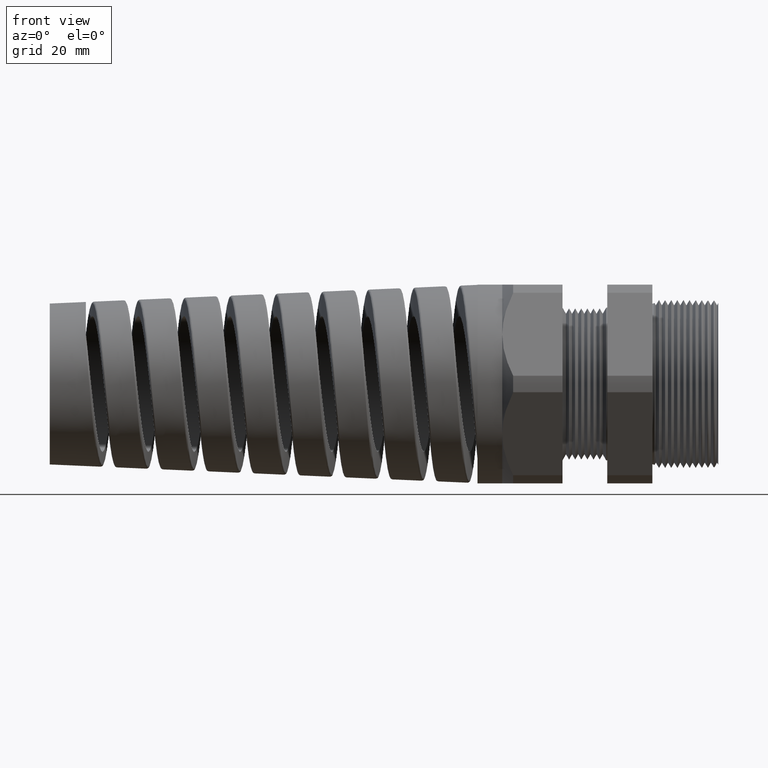
[diagram: clean part render]
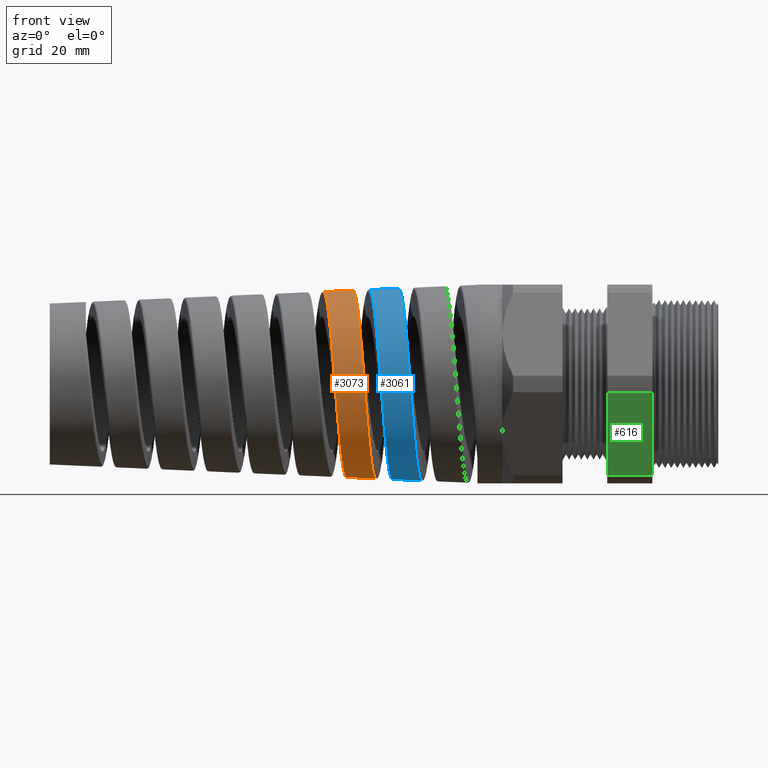
[diagram: same view with three faces highlighted in distinct colors, each labeled with its STEP entity id]
A machine part, front view with three faces highlighted in distinct colors.
Their STEP definitions:

[orange] entity #3073 — the highlighted conical surface has half-angle 2.5 deg.
#1155 = VERTEX_POINT ( 'NONE', #5841 ) ;
#1157 = EDGE_CURVE ( 'NONE', #1155, #1158, #5840, .T. ) ;
#1158 = VERTEX_POINT ( 'NONE', #5836 ) ;
#1261 = VERTEX_POINT ( 'NONE', #11812 ) ;
#1268 = VERTEX_POINT ( 'NONE', #11918 ) ;
#1270 = EDGE_CURVE ( 'NONE', #1261, #1268, #11941, .T. ) ;
#2637 = EDGE_CURVE ( 'NONE', #1268, #1158, #14416, .T. ) ;
#2638 = EDGE_CURVE ( 'NONE', #1155, #1261, #14441, .T. ) ;
#2639 = ORIENTED_EDGE ( 'NONE', *, *, #2637, .T. ) ;
#2640 = ORIENTED_EDGE ( 'NONE', *, *, #1270, .T. ) ;
#2642 = ORIENTED_EDGE ( 'NONE', *, *, #1157, .F. ) ;
#2643 = ORIENTED_EDGE ( 'NONE', *, *, #2638, .T. ) ;
#3062 = EDGE_LOOP ( 'NONE', ( #2642, #2643, #2640, #2639 ) ) ;
#3073 = ADVANCED_FACE ( 'NONE', ( #15644 ), #15642, .T. ) ;
#5836 = CARTESIAN_POINT ( 'NONE',  ( -2.267599282460375200, -1.060997802444988300E-012, 0.6125564066901162400 ) ) ;
#5837 = DIRECTION ( 'NONE',  ( 0.9990482215818576900, 5.341834311772759500E-018, 0.04361938736533629800 ) ) ;
#5838 = VECTOR ( 'NONE', #5837, 39.37007874015748100 ) ;
#5839 = CARTESIAN_POINT ( 'NONE',  ( -1.409999999999999900, 7.960204194457794200E-017, 0.6499999999999999100 ) ) ;
#5840 = LINE ( 'NONE', #5839, #5838 ) ;
#5841 = CARTESIAN_POINT ( 'NONE',  ( -2.460843026115490300, 6.619251422860880200E-016, 0.6041192026309630800 ) ) ;
#11812 = CARTESIAN_POINT ( 'NONE',  ( -2.310798001983872800, 3.935407412703877100E-016, -0.6106703098632800800 ) ) ;
#11918 = CARTESIAN_POINT ( 'NONE',  ( -2.117643765546732800, 2.337133576248687500E-015, -0.6191036059528992600 ) ) ;
#11938 = DIRECTION ( 'NONE',  ( 0.9990482215818576900, 0.0000000000000000000, -0.04361938736533629800 ) ) ;
#11939 = VECTOR ( 'NONE', #11938, 39.37007874015748100 ) ;
#11940 = CARTESIAN_POINT ( 'NONE',  ( -1.409999999999999900, 0.0000000000000000000, -0.6499999999999999100 ) ) ;
#11941 = LINE ( 'NONE', #11940, #11939 ) ;
#14404 = CARTESIAN_POINT ( 'NONE',  ( -2.148748076653271200, -0.3748635134618660300, -0.4914195617833571100 ) ) ;
#14405 = CARTESIAN_POINT ( 'NONE',  ( -2.145649160591451800, -0.3426161511265948800, -0.5153596225886052400 ) ) ;
#14406 = CARTESIAN_POINT ( 'NONE',  ( -2.142551714420069900, -0.3082112566471314500, -0.5360554704980188300 ) ) ;
#14407 = CARTESIAN_POINT ( 'NONE',  ( -2.139440195485409200, -0.2727145497808841100, -0.5551075177211213200 ) ) ;
#14408 = CARTESIAN_POINT ( 'NONE',  ( -2.137869395611405700, -0.2543236961998687200, -0.5638500969570765500 ) ) ;
#14409 = CARTESIAN_POINT ( 'NONE',  ( -2.133174460379211100, -0.1981821192845789300, -0.5872115002963112000 ) ) ;
#14410 = CARTESIAN_POINT ( 'NONE',  ( -2.130090990488244800, -0.1597710993292794100, -0.5989176434569933900 ) ) ;
#14411 = CARTESIAN_POINT ( 'NONE',  ( -2.125444557469768000, -0.1007285618598526700, -0.6108392173797652100 ) ) ;
#14412 = CARTESIAN_POINT ( 'NONE',  ( -2.123892313654280400, -0.08080834758049326700, -0.6138667868113912900 ) ) ;
#14413 = CARTESIAN_POINT ( 'NONE',  ( -2.120765540190106000, -0.04047664027519349400, -0.6179749543062356100 ) ) ;
#14414 = CARTESIAN_POINT ( 'NONE',  ( -2.119197021113838000, -0.02014265898592699700, -0.6190357893502617100 ) ) ;
#14415 = CARTESIAN_POINT ( 'NONE',  ( -2.117643765546732800, 2.337133576248687500E-015, -0.6191036059528992600 ) ) ;
#14416 = B_SPLINE_CURVE_WITH_KNOTS ( 'NONE', 3,
 ( #14415, #14414, #14413, #14412, #14411, #14410, #14409, #14408, #14407, #14406, #14405, #14404, #14483, #14482, #14481, #14480, #14479, #14478, #14477, #14476, #14475, #14474, #14473, #14472, #14471, #14470, #14469, #14468, #14467, #14466, #14465, #14464, #14463, #14462, #14461, #14460, #14459, #14458, #14457, #14456, #14455, #14454, #14453, #14452, #14451, #14450, #14449, #14448, #14447, #14446, #14445 ),
 .UNSPECIFIED., .F., .F.,
 ( 4, 2, 2, 2, 2, 1, 2, 2, 2, 2, 2, 2, 2, 2, 2, 2, 2, 2, 2, 2, 2, 2, 2, 2, 2, 4 ),
 ( 0.2216611756112394400, 0.2232061605006816500, 0.2247511453901238400, 0.2278411151690082300, 0.2293861000584504500, 0.2309310849478926600, 0.2324760698373348500, 0.2340210547267770600, 0.2371110245056614600, 0.2386560093951036700, 0.2402009942845458600, 0.2432909640634302600, 0.2448359489528724700, 0.2463809338423146900, 0.2494709036211990900, 0.2525608734000834900, 0.2541058582895257000, 0.2556508431789679100, 0.2587408129578522800, 0.2602857978472945000, 0.2618307827367367100, 0.2649207525156210800, 0.2664657374050633000, 0.2680107222945055100, 0.2695557071839477200, 0.2711006920733899400 ),
 .UNSPECIFIED. ) ;
#14440 = CARTESIAN_POINT ( 'NONE',  ( -2.460843026115490300, 6.619251422860880200E-016, 0.6041192026309630800 ) ) ;
#14441 = B_SPLINE_CURVE_WITH_KNOTS ( 'NONE', 3,
 ( #14440, #14533, #14532, #14531, #14530, #14529, #14528, #14527, #14526, #14525, #14524, #14523, #14522, #14521, #14520, #14519, #14518, #14517, #14516, #14515, #14514, #14513, #14512, #14511, #14510, #14509, #14508, #14507, #14506, #14505, #14504, #14503, #14502, #14501, #14500, #14499, #14498, #14497, #14496, #14495, #14494, #14493, #14492, #14491, #14490, #14489, #14488, #14487, #14486, #14485, #14484 ),
 .UNSPECIFIED., .F., .F.,
 ( 4, 2, 2, 2, 2, 2, 2, 2, 2, 2, 2, 2, 2, 2, 2, 2, 1, 2, 2, 2, 2, 2, 2, 2, 2, 4 ),
 ( 0.4764868271479924000, 0.4780195015066774400, 0.4795521758653624200, 0.4826175245827324900, 0.4841501989414174800, 0.4856828733001025100, 0.4872155476587875500, 0.4887482220174725300, 0.4918135707348426100, 0.4933462450935276500, 0.4948789194522126300, 0.4979442681695827000, 0.4994769425282677400, 0.5010096168869527800, 0.5040749656043227400, 0.5056076399630078400, 0.5071403143216928200, 0.5086729886803779100, 0.5102056630390629000, 0.5132710117564329700, 0.5148036861151179500, 0.5163363604738030500, 0.5194017091911731200, 0.5209343835498581000, 0.5224670579085430900, 0.5255324066259131600 ),
 .UNSPECIFIED. ) ;
#14445 = CARTESIAN_POINT ( 'NONE',  ( -2.267599282460375200, -1.060997802444988300E-012, 0.6125564066901162400 ) ) ;
#14446 = CARTESIAN_POINT ( 'NONE',  ( -2.266018438885800900, -0.02028891158027968900, 0.6126254278111380500 ) ) ;
#14447 = CARTESIAN_POINT ( 'NONE',  ( -2.264436588175866100, -0.04059513774669750600, 0.6116795121820749500 ) ) ;
#14448 = CARTESIAN_POINT ( 'NONE',  ( -2.261299951127252700, -0.08067269911271995900, 0.6078318356473121400 ) ) ;
#14449 = CARTESIAN_POINT ( 'NONE',  ( -2.259738394451867600, -0.1005312750507016300, 0.6049311113345989800 ) ) ;
#14450 = CARTESIAN_POINT ( 'NONE',  ( -2.256614523648575500, -0.1398910396983227600, 0.5971983677977211700 ) ) ;
#14451 = CARTESIAN_POINT ( 'NONE',  ( -2.255052315361659100, -0.1593922406331463600, 0.5923663691263956200 ) ) ;
#14452 = CARTESIAN_POINT ( 'NONE',  ( -2.251911635989639800, -0.1980298262859883900, 0.5807375932471133800 ) ) ;
#14453 = CARTESIAN_POINT ( 'NONE',  ( -2.250324628938235300, -0.2172671289384257000, 0.5738937036319454700 ) ) ;
#14454 = CARTESIAN_POINT ( 'NONE',  ( -2.245603547217553100, -0.2733524185665216500, 0.5507426697500986700 ) ) ;
#14455 = CARTESIAN_POINT ( 'NONE',  ( -2.242496612152563800, -0.3087534177208572900, 0.5318424620499233600 ) ) ;
#14456 = CARTESIAN_POINT ( 'NONE',  ( -2.237806834292570100, -0.3589226198468670200, 0.4983965592378679600 ) ) ;
#14457 = CARTESIAN_POINT ( 'NONE',  ( -2.236239059607505000, -0.3751535253737651700, 0.4863926068417343500 ) ) ;
#14458 = CARTESIAN_POINT ( 'NONE',  ( -2.233078476883526300, -0.4065961166497698000, 0.4606158797633822500 ) ) ;
#14459 = CARTESIAN_POINT ( 'NONE',  ( -2.231507593934126000, -0.4215870102829229500, 0.4470203683399073800 ) ) ;
#14460 = CARTESIAN_POINT ( 'NONE',  ( -2.226819493200066900, -0.4642461652584088400, 0.4043551977941811600 ) ) ;
#14461 = CARTESIAN_POINT ( 'NONE',  ( -2.223717817362929500, -0.4897111991824605900, 0.3733518204485451500 ) ) ;
#14462 = CARTESIAN_POINT ( 'NONE',  ( -2.219010271411129900, -0.5233851020768627300, 0.3229628414231271400 ) ) ;
#14463 = CARTESIAN_POINT ( 'NONE',  ( -2.217425646756379500, -0.5338816673396279400, 0.3054376624326868800 ) ) ;
#14464 = CARTESIAN_POINT ( 'NONE',  ( -2.214289769728746500, -0.5528987695859191000, 0.2698019760827489200 ) ) ;
#14465 = CARTESIAN_POINT ( 'NONE',  ( -2.212731327880451900, -0.5614760372991988200, 0.2516206869051218500 ) ) ;
#14466 = CARTESIAN_POINT ( 'NONE',  ( -2.208061585777209200, -0.5844707551104219000, 0.1960105029627073100 ) ) ;
#14467 = CARTESIAN_POINT ( 'NONE',  ( -2.204949797320382200, -0.5961941279538015600, 0.1574436241336891500 ) ) ;
#14468 = CARTESIAN_POINT ( 'NONE',  ( -2.198644226288095200, -0.6119942230762799300, 0.07770372042094622600 ) ) ;
#14469 = CARTESIAN_POINT ( 'NONE',  ( -2.195542661680833300, -0.6158561802327942000, 0.03769842453907544500 ) ) ;
#14470 = CARTESIAN_POINT ( 'NONE',  ( -2.190877454879762700, -0.6158220907385653100, -0.02249806069283927900 ) ) ;
#14471 = CARTESIAN_POINT ( 'NONE',  ( -2.189320280084960000, -0.6148324385977378400, -0.04259521379731484600 ) ) ;
#14472 = CARTESIAN_POINT ( 'NONE',  ( -2.186186185045257500, -0.6108495971380175600, -0.08285315304501092400 ) ) ;
#14473 = CARTESIAN_POINT ( 'NONE',  ( -2.184606565733892700, -0.6078373245155576100, -0.1030460059487269300 ) ) ;
#14474 = CARTESIAN_POINT ( 'NONE',  ( -2.179918637384106200, -0.5959752538922994400, -0.1623926287125875800 ) ) ;
#14475 = CARTESIAN_POINT ( 'NONE',  ( -2.176826787698861800, -0.5843021285851487400, -0.2007690237982258700 ) ) ;
#14476 = CARTESIAN_POINT ( 'NONE',  ( -2.172152739683407500, -0.5611873942471803400, -0.2565579974410812100 ) ) ;
#14477 = CARTESIAN_POINT ( 'NONE',  ( -2.170582230966280800, -0.5525022926931995000, -0.2749285401470254500 ) ) ;
#14478 = CARTESIAN_POINT ( 'NONE',  ( -2.167442211785590300, -0.5333572909572991100, -0.3107146992744682600 ) ) ;
#14479 = CARTESIAN_POINT ( 'NONE',  ( -2.165884326703022600, -0.5229767071995662400, -0.3280008362651017400 ) ) ;
#14480 = CARTESIAN_POINT ( 'NONE',  ( -2.161223391680197700, -0.4894859439166884300, -0.3780927382889309700 ) ) ;
#14481 = CARTESIAN_POINT ( 'NONE',  ( -2.158133022768596600, -0.4640487551317312200, -0.4091485487042359500 ) ) ;
#14482 = CARTESIAN_POINT ( 'NONE',  ( -2.153436890104151400, -0.4211194250742985000, -0.4521340456430830200 ) ) ;
#14483 = CARTESIAN_POINT ( 'NONE',  ( -2.151862845988195000, -0.4060143418977094600, -0.4658327951153114500 ) ) ;
#14484 = CARTESIAN_POINT ( 'NONE',  ( -2.310798001983872800, 3.935407412703877100E-016, -0.6106703098632800800 ) ) ;
#14485 = CARTESIAN_POINT ( 'NONE',  ( -2.313935675837063100, -0.04011185024848634000, -0.6105333160643104900 ) ) ;
#14486 = CARTESIAN_POINT ( 'NONE',  ( -2.317026865079828000, -0.07961022770671967500, -0.6064768839479379700 ) ) ;
#14487 = CARTESIAN_POINT ( 'NONE',  ( -2.321671651980422800, -0.1377992321404393800, -0.5947616758399232300 ) ) ;
#14488 = CARTESIAN_POINT ( 'NONE',  ( -2.323221867656337600, -0.1570275855180682500, -0.5899112779329893600 ) ) ;
#14489 = CARTESIAN_POINT ( 'NONE',  ( -2.326341449741795100, -0.1951399548277629200, -0.5782795097889997800 ) ) ;
#14490 = CARTESIAN_POINT ( 'NONE',  ( -2.327917388834371200, -0.2140985704948736900, -0.5714583231738233900 ) ) ;
#14491 = CARTESIAN_POINT ( 'NONE',  ( -2.332598924733379200, -0.2692754003060686700, -0.5484842984491374900 ) ) ;
#14492 = CARTESIAN_POINT ( 'NONE',  ( -2.335684211913660000, -0.3041450201218783800, -0.5297754097327918000 ) ) ;
#14493 = CARTESIAN_POINT ( 'NONE',  ( -2.340347086163941700, -0.3536065416731786800, -0.4966890980439268000 ) ) ;
#14494 = CARTESIAN_POINT ( 'NONE',  ( -2.341909066201757600, -0.3696351432160789300, -0.4848020993092561600 ) ) ;
#14495 = CARTESIAN_POINT ( 'NONE',  ( -2.345052939723293800, -0.4006250240245883300, -0.4593425190173251500 ) ) ;
#14496 = CARTESIAN_POINT ( 'NONE',  ( -2.346612453975236400, -0.4153662249348957200, -0.4459538245055674200 ) ) ;
#14497 = CARTESIAN_POINT ( 'NONE',  ( -2.351277117843760100, -0.4574028348309386900, -0.4038782329136363900 ) ) ;
#14498 = CARTESIAN_POINT ( 'NONE',  ( -2.354367534632557700, -0.4825315824051149000, -0.3732994767418704200 ) ) ;
#14499 = CARTESIAN_POINT ( 'NONE',  ( -2.359061816194219400, -0.5157968025192851700, -0.3235743260394945400 ) ) ;
#14500 = CARTESIAN_POINT ( 'NONE',  ( -2.360640648844435600, -0.5261575727082178400, -0.3062997759471735000 ) ) ;
#14501 = CARTESIAN_POINT ( 'NONE',  ( -2.363765435893274300, -0.5449310792964379100, -0.2711926370431513900 ) ) ;
#14502 = CARTESIAN_POINT ( 'NONE',  ( -2.366873770568397500, -0.5618826253948066000, -0.2353594923088097900 ) ) ;
#14503 = CARTESIAN_POINT ( 'NONE',  ( -2.369979455142504000, -0.5752550253698819300, -0.1981026666006752400 ) ) ;
#14504 = CARTESIAN_POINT ( 'NONE',  ( -2.373098191714373900, -0.5868190000572859300, -0.1601277236034604200 ) ) ;
#14505 = CARTESIAN_POINT ( 'NONE',  ( -2.374669102772128900, -0.5917096219455683100, -0.1407155994211838600 ) ) ;
#14506 = CARTESIAN_POINT ( 'NONE',  ( -2.379389903535164700, -0.6034756530125450200, -0.08179830949736845200 ) ) ;
#14507 = CARTESIAN_POINT ( 'NONE',  ( -2.382489227396079800, -0.6073534461976009000, -0.04235891546057958500 ) ) ;
#14508 = CARTESIAN_POINT ( 'NONE',  ( -2.387158657683663400, -0.6074202464866775800, 0.01702676678407804800 ) ) ;
#14509 = CARTESIAN_POINT ( 'NONE',  ( -2.388718443888624900, -0.6064772547653737300, 0.03686004272635387500 ) ) ;
#14510 = CARTESIAN_POINT ( 'NONE',  ( -2.391859821263449400, -0.6026098770834643600, 0.07660351034626344800 ) ) ;
#14511 = CARTESIAN_POINT ( 'NONE',  ( -2.393441341773077100, -0.5996710440236888700, 0.09651116111859837900 ) ) ;
#14512 = CARTESIAN_POINT ( 'NONE',  ( -2.398135524017632700, -0.5880669683951136300, 0.1550309779577427900 ) ) ;
#14513 = CARTESIAN_POINT ( 'NONE',  ( -2.401233958257529700, -0.5766105239856972300, 0.1928991824022607500 ) ) ;
#14514 = CARTESIAN_POINT ( 'NONE',  ( -2.405925907546318000, -0.5538615303116792800, 0.2479814782612726800 ) ) ;
#14515 = CARTESIAN_POINT ( 'NONE',  ( -2.407505157336658400, -0.5452962629271876900, 0.2661409710146771000 ) ) ;
#14516 = CARTESIAN_POINT ( 'NONE',  ( -2.410655574948698200, -0.5264579918224454600, 0.3014203020601518000 ) ) ;
#14517 = CARTESIAN_POINT ( 'NONE',  ( -2.412219782839967400, -0.5162371549637344600, 0.3184665606730304700 ) ) ;
#14518 = CARTESIAN_POINT ( 'NONE',  ( -2.416901500395515900, -0.4832383846215127500, 0.3678739880603655300 ) ) ;
#14519 = CARTESIAN_POINT ( 'NONE',  ( -2.420007548183789000, -0.4581464533212501500, 0.3985203712323054400 ) ) ;
#14520 = CARTESIAN_POINT ( 'NONE',  ( -2.424736573343957900, -0.4157353146338101900, 0.4409435138210589500 ) ) ;
#14521 = CARTESIAN_POINT ( 'NONE',  ( -2.426318036319475200, -0.4008492118429535200, 0.4544206498656681000 ) ) ;
#14522 = CARTESIAN_POINT ( 'NONE',  ( -2.429451820826671300, -0.3701208635066994800, 0.4796071874846210000 ) ) ;
#14523 = CARTESIAN_POINT ( 'NONE',  ( -2.431012078652640800, -0.3542082221080076200, 0.4913890498250008100 ) ) ;
#14524 = CARTESIAN_POINT ( 'NONE',  ( -2.434133941033193700, -0.3213005289668318100, 0.5133494028784543200 ) ) ;
#14525 = CARTESIAN_POINT ( 'NONE',  ( -2.435695312449541700, -0.3043054765554347700, 0.5235279256307010500 ) ) ;
#14526 = CARTESIAN_POINT ( 'NONE',  ( -2.438834269532884800, -0.2692161786326530100, 0.5422546358535782500 ) ) ;
#14527 = CARTESIAN_POINT ( 'NONE',  ( -2.440420761753733900, -0.2510157743396814700, 0.5508428101201847700 ) ) ;
#14528 = CARTESIAN_POINT ( 'NONE',  ( -2.445148823535332000, -0.1956454647709430800, 0.5736772393696962800 ) ) ;
#14529 = CARTESIAN_POINT ( 'NONE',  ( -2.448260171602055600, -0.1577321154501433700, 0.5850773532168162000 ) ) ;
#14530 = CARTESIAN_POINT ( 'NONE',  ( -2.452957809787625900, -0.09940127528936720800, 0.5965636532062245100 ) ) ;
#14531 = CARTESIAN_POINT ( 'NONE',  ( -2.454528577344359700, -0.07971243942866657100, 0.5994501166525080200 ) ) ;
#14532 = CARTESIAN_POINT ( 'NONE',  ( -2.457695042638989900, -0.03982910240851029300, 0.6032752778290908500 ) ) ;
#14533 = CARTESIAN_POINT ( 'NONE',  ( -2.459274311635407900, -0.01984471355381388700, 0.6041876941843179500 ) ) ;
#15639 = DIRECTION ( 'NONE',  ( 0.0000000000000000000, 0.0000000000000000000, -1.000000000000000000 ) ) ;
#15640 = DIRECTION ( 'NONE',  ( 1.000000000000000000, 0.0000000000000000000, 0.0000000000000000000 ) ) ;
#15641 = AXIS2_PLACEMENT_3D ( 'NONE', #15643, #15640, #15639 ) ;
#15642 = CONICAL_SURFACE ( 'NONE', #15641, 0.6499999999999999100, 0.04363323129985853500 ) ;
#15643 = CARTESIAN_POINT ( 'NONE',  ( -1.409999999999999900, 0.0000000000000000000, 0.0000000000000000000 ) ) ;
#15644 = FACE_OUTER_BOUND ( 'NONE', #3062, .T. ) ;

[blue] entity #3061 — the highlighted conical surface has half-angle 2.5 deg.
#136 = VERTEX_POINT ( 'NONE', #1902 ) ;
#342 = VERTEX_POINT ( 'NONE', #3093 ) ;
#560 = EDGE_CURVE ( 'NONE', #136, #342, #3530, .T. ) ;
#1262 = VERTEX_POINT ( 'NONE', #11813 ) ;
#1264 = EDGE_CURVE ( 'NONE', #1262, #1265, #11837, .T. ) ;
#1265 = VERTEX_POINT ( 'NONE', #11919 ) ;
#1902 = CARTESIAN_POINT ( 'NONE',  ( -2.010707904458238100, -1.443764010017014800E-015, -0.6237725264787565800 ) ) ;
#2664 = ORIENTED_EDGE ( 'NONE', *, *, #2665, .T. ) ;
#2665 = EDGE_CURVE ( 'NONE', #342, #1265, #14696, .T. ) ;
#3061 = ADVANCED_FACE ( 'NONE', ( #15444 ), #15468, .T. ) ;
#3063 = EDGE_CURVE ( 'NONE', #1262, #136, #15462, .T. ) ;
#3069 = ORIENTED_EDGE ( 'NONE', *, *, #1264, .F. ) ;
#3070 = ORIENTED_EDGE ( 'NONE', *, *, #560, .T. ) ;
#3071 = ORIENTED_EDGE ( 'NONE', *, *, #3063, .T. ) ;
#3074 = EDGE_LOOP ( 'NONE', ( #3069, #3071, #3070, #2664 ) ) ;
#3093 = CARTESIAN_POINT ( 'NONE',  ( -1.817734598575231100, 7.406057977498778000E-013, -0.6321979229697816100 ) ) ;
#3527 = DIRECTION ( 'NONE',  ( 0.9990482215818576900, 0.0000000000000000000, -0.04361938736533629800 ) ) ;
#3528 = VECTOR ( 'NONE', #3527, 39.37007874015748100 ) ;
#3529 = CARTESIAN_POINT ( 'NONE',  ( -1.409999999999999900, 0.0000000000000000000, -0.6499999999999999100 ) ) ;
#3530 = LINE ( 'NONE', #3529, #3528 ) ;
#11813 = CARTESIAN_POINT ( 'NONE',  ( -2.160752234427023600, 9.788047423580631800E-013, 0.6172214495542435200 ) ) ;
#11835 = VECTOR ( 'NONE', #11920, 39.37007874015748100 ) ;
#11836 = CARTESIAN_POINT ( 'NONE',  ( -1.409999999999999900, 7.960204194457794200E-017, 0.6499999999999999100 ) ) ;
#11837 = LINE ( 'NONE', #11836, #11835 ) ;
#11919 = CARTESIAN_POINT ( 'NONE',  ( -1.967688787628526100, 3.052231764525965700E-016, 0.6256507816826333300 ) ) ;
#11920 = DIRECTION ( 'NONE',  ( 0.9990482215818576900, 5.341834311772759500E-018, 0.04361938736533629800 ) ) ;
#14653 = CARTESIAN_POINT ( 'NONE',  ( -1.951993729492045700, -0.2027329576198573500, 0.5940368388666180700 ) ) ;
#14654 = CARTESIAN_POINT ( 'NONE',  ( -1.947304741385249100, -0.2596359423431160400, 0.5705816390049853700 ) ) ;
#14655 = CARTESIAN_POINT ( 'NONE',  ( -1.945738051917321300, -0.2782703133937679500, 0.5618133341764377500 ) ) ;
#14656 = CARTESIAN_POINT ( 'NONE',  ( -1.942581301954765300, -0.3148509731735671400, 0.5423192790100295200 ) ) ;
#14657 = CARTESIAN_POINT ( 'NONE',  ( -1.941001974986142200, -0.3326671533072027600, 0.5316518434836368100 ) ) ;
#14658 = CARTESIAN_POINT ( 'NONE',  ( -1.936304439380840200, -0.3839781882752416600, 0.4974009093116567000 ) ) ;
#14659 = CARTESIAN_POINT ( 'NONE',  ( -1.933199666184563000, -0.4156695763061979400, 0.4714264758156025400 ) ) ;
#14660 = CARTESIAN_POINT ( 'NONE',  ( -1.928495615600488200, -0.4594058263826835100, 0.4277312624969735700 ) ) ;
#14661 = CARTESIAN_POINT ( 'NONE',  ( -1.926910985239510500, -0.4734150260096695000, 0.4122802380213428400 ) ) ;
#14662 = CARTESIAN_POINT ( 'NONE',  ( -1.923768100199343000, -0.4996193845943825400, 0.3803281014551471200 ) ) ;
#14663 = CARTESIAN_POINT ( 'NONE',  ( -1.922207013495255400, -0.5118500259072806800, 0.3638094538552533200 ) ) ;
#14664 = CARTESIAN_POINT ( 'NONE',  ( -1.917531291950154100, -0.5459891846466981000, 0.3126663276456209700 ) ) ;
#14665 = CARTESIAN_POINT ( 'NONE',  ( -1.914424219653038800, -0.5653697832304667200, 0.2764701051072355200 ) ) ;
#14666 = CARTESIAN_POINT ( 'NONE',  ( -1.908112902749910400, -0.5971067132894000200, 0.1997209242049762500 ) ) ;
#14667 = CARTESIAN_POINT ( 'NONE',  ( -1.905001778751909100, -0.6089760666026365900, 0.1603084607724201100 ) ) ;
#14668 = CARTESIAN_POINT ( 'NONE',  ( -1.900333805568871900, -0.6209231952316022200, 0.1000080487534649300 ) ) ;
#14669 = CARTESIAN_POINT ( 'NONE',  ( -1.898776321737568200, -0.6239292210957895200, 0.07969247303472164200 ) ) ;
#14670 = CARTESIAN_POINT ( 'NONE',  ( -1.895643133516785800, -0.6279481403251280200, 0.03862270903874989700 ) ) ;
#14671 = CARTESIAN_POINT ( 'NONE',  ( -1.894060691844956700, -0.6289526295020398900, 0.01777942744618765000 ) ) ;
#14672 = CARTESIAN_POINT ( 'NONE',  ( -1.889362112147771900, -0.6288768119018761600, -0.04412266959869268200 ) ) ;
#14673 = CARTESIAN_POINT ( 'NONE',  ( -1.886268424009382100, -0.6248036113178046000, -0.08490260406828711900 ) ) ;
#14674 = CARTESIAN_POINT ( 'NONE',  ( -1.881594571210709800, -0.6127429771251696700, -0.1453434454950211200 ) ) ;
#14675 = CARTESIAN_POINT ( 'NONE',  ( -1.880028860087880900, -0.6077152429242412800, -0.1653967011479110200 ) ) ;
#14676 = CARTESIAN_POINT ( 'NONE',  ( -1.876879844372134600, -0.5956248321121995200, -0.2051293643774615100 ) ) ;
#14677 = CARTESIAN_POINT ( 'NONE',  ( -1.875318191485647800, -0.5886485487835403400, -0.2245351928898499100 ) ) ;
#14678 = CARTESIAN_POINT ( 'NONE',  ( -1.870648902249960600, -0.5650215374637902500, -0.2814163568732283600 ) ) ;
#14679 = CARTESIAN_POINT ( 'NONE',  ( -1.867558139305486100, -0.5456975895323616900, -0.3175678381758667000 ) ) ;
#14680 = CARTESIAN_POINT ( 'NONE',  ( -1.862864876088982800, -0.5112607458045019800, -0.3690878309793759700 ) ) ;
#14681 = CARTESIAN_POINT ( 'NONE',  ( -1.861287229822808700, -0.4988270907499649500, -0.3858366522986686500 ) ) ;
#14682 = CARTESIAN_POINT ( 'NONE',  ( -1.858165741724070200, -0.4726574880462401400, -0.4176902067780097800 ) ) ;
#14683 = CARTESIAN_POINT ( 'NONE',  ( -1.855061315932677400, -0.4450715234094729800, -0.4480901312425472600 ) ) ;
#14684 = CARTESIAN_POINT ( 'NONE',  ( -1.851961358880573200, -0.4147063511493165900, -0.4756345561223276300 ) ) ;
#14685 = CARTESIAN_POINT ( 'NONE',  ( -1.848850035738585800, -0.3829383550997209100, -0.5017361627528966700 ) ) ;
#14686 = CARTESIAN_POINT ( 'NONE',  ( -1.847282875198532800, -0.3662917366394150000, -0.5141060991773344100 ) ) ;
#14687 = CARTESIAN_POINT ( 'NONE',  ( -1.842577197989009300, -0.3145792660958439700, -0.5486930117921513500 ) ) ;
#14688 = CARTESIAN_POINT ( 'NONE',  ( -1.839489076715147900, -0.2783806970927031300, -0.5680312633302047100 ) ) ;
#14689 = CARTESIAN_POINT ( 'NONE',  ( -1.834839006341247900, -0.2215925146542966400, -0.5916481856751226700 ) ) ;
#14690 = CARTESIAN_POINT ( 'NONE',  ( -1.833286149148758400, -0.2022450569907667500, -0.5986156021266936200 ) ) ;
#14691 = CARTESIAN_POINT ( 'NONE',  ( -1.830160340541086700, -0.1626935574148840600, -0.6106937867933978100 ) ) ;
#14692 = CARTESIAN_POINT ( 'NONE',  ( -1.828587539840351300, -0.1424857216990443000, -0.6157899887719074900 ) ) ;
#14693 = CARTESIAN_POINT ( 'NONE',  ( -1.823919869418907800, -0.08190636719572817700, -0.6279497774691568100 ) ) ;
#14694 = CARTESIAN_POINT ( 'NONE',  ( -1.820840834425827100, -0.04114010421144031300, -0.6320623017836964900 ) ) ;
#14695 = CARTESIAN_POINT ( 'NONE',  ( -1.817734598575231100, 7.406057977498778000E-013, -0.6321979229697816100 ) ) ;
#14696 = B_SPLINE_CURVE_WITH_KNOTS ( 'NONE', 3,
 ( #14695, #14694, #14693, #14692, #14691, #14690, #14689, #14688, #14687, #14686, #14685, #14684, #14683, #14682, #14681, #14680, #14679, #14678, #14677, #14676, #14675, #14674, #14673, #14672, #14671, #14670, #14669, #14668, #14667, #14666, #14665, #14664, #14663, #14662, #14661, #14660, #14659, #14658, #14657, #14656, #14655, #14654, #14653, #14725, #14724, #14723, #14722, #14721, #14720 ),
 .UNSPECIFIED., .F., .F.,
 ( 4, 2, 2, 2, 2, 2, 1, 2, 2, 2, 2, 2, 2, 2, 2, 2, 2, 2, 2, 2, 2, 2, 2, 2, 4 ),
 ( 0.1211753246788519800, 0.1243320070424732300, 0.1259103482242838500, 0.1274886894060944800, 0.1306453717697157500, 0.1322237129515263500, 0.1338020541333369800, 0.1353803953151476200, 0.1369587364969582500, 0.1401154188605794900, 0.1416937600423901200, 0.1432721012242007500, 0.1464287835878220200, 0.1480071247696326300, 0.1495854659514432900, 0.1527421483150645200, 0.1558988306786857900, 0.1574771718604964200, 0.1590555130423070600, 0.1622121954059283200, 0.1637905365877389600, 0.1653688777695495600, 0.1685255601331708300, 0.1701039013149814600, 0.1716822424967920900 ),
 .UNSPECIFIED. ) ;
#14720 = CARTESIAN_POINT ( 'NONE',  ( -1.967688787628526100, 3.052231764525965700E-016, 0.6256507816826333300 ) ) ;
#14721 = CARTESIAN_POINT ( 'NONE',  ( -1.966126037686260800, -0.02048630044164810900, 0.6257190128186427300 ) ) ;
#14722 = CARTESIAN_POINT ( 'NONE',  ( -1.964563761299096900, -0.04097426158569839700, 0.6247834582097063800 ) ) ;
#14723 = CARTESIAN_POINT ( 'NONE',  ( -1.961424631579581600, -0.08195235974743529700, 0.6208773041232442700 ) ) ;
#14724 = CARTESIAN_POINT ( 'NONE',  ( -1.959839213852566900, -0.1025525989017531100, 0.6178827997825084900 ) ) ;
#14725 = CARTESIAN_POINT ( 'NONE',  ( -1.955104979361242900, -0.1634739988394555400, 0.6059011876031682500 ) ) ;
#15444 = FACE_OUTER_BOUND ( 'NONE', #3074, .T. ) ;
#15460 = CARTESIAN_POINT ( 'NONE',  ( -2.157615761355624600, -0.04053565161295608800, 0.6173583909260120800 ) ) ;
#15461 = CARTESIAN_POINT ( 'NONE',  ( -2.160752234427023600, 9.788047423580631800E-013, 0.6172214495542435200 ) ) ;
#15462 = B_SPLINE_CURVE_WITH_KNOTS ( 'NONE', 3,
 ( #15461, #15460, #15546, #15545, #15544, #15543, #15542, #15541, #15540, #15539, #15538, #15537, #15536, #15535, #15534, #15533, #15532, #15531, #15530, #15529, #15528, #15527, #15526, #15525, #15524, #15523, #15522, #15521, #15520, #15519, #15518, #15517, #15516, #15515, #15514, #15513, #15512, #15511, #15510, #15509, #15508, #15507, #15506, #15505, #15504, #15503, #15502, #15501, #15500, #15499, #15498 ),
 .UNSPECIFIED., .F., .F.,
 ( 4, 2, 2, 2, 2, 2, 2, 2, 2, 2, 2, 2, 2, 2, 1, 2, 2, 2, 2, 2, 2, 2, 2, 2, 2, 4 ),
 ( 0.5751097450842735900, 0.5782421380648743400, 0.5798083345551747800, 0.5813745310454751000, 0.5829407275357755300, 0.5845069240260758500, 0.5876393170066766000, 0.5892055134969770300, 0.5907717099872774600, 0.5939041029678782100, 0.5954702994581785300, 0.5970364959484789600, 0.6001688889290797100, 0.6017350854193801400, 0.6033012819096804600, 0.6048674783999809000, 0.6064336748902812200, 0.6095660678708820800, 0.6111322643611824000, 0.6126984608514828300, 0.6158308538320835800, 0.6173970503223840100, 0.6189632468126843300, 0.6220956397932851900, 0.6236618362835855100, 0.6252280327738859400 ),
 .UNSPECIFIED. ) ;
#15464 = DIRECTION ( 'NONE',  ( 0.0000000000000000000, 0.0000000000000000000, -1.000000000000000000 ) ) ;
#15465 = DIRECTION ( 'NONE',  ( 1.000000000000000000, 0.0000000000000000000, 0.0000000000000000000 ) ) ;
#15466 = CARTESIAN_POINT ( 'NONE',  ( -1.409999999999999900, 0.0000000000000000000, 0.0000000000000000000 ) ) ;
#15467 = AXIS2_PLACEMENT_3D ( 'NONE', #15466, #15465, #15464 ) ;
#15468 = CONICAL_SURFACE ( 'NONE', #15467, 0.6499999999999999100, 0.04363323129985853500 ) ;
#15498 = CARTESIAN_POINT ( 'NONE',  ( -2.010707904458238100, -1.443764010017014800E-015, -0.6237725264787565800 ) ) ;
#15499 = CARTESIAN_POINT ( 'NONE',  ( -2.012255585632261900, -0.02021455222337458300, -0.6237049532593765800 ) ) ;
#15500 = CARTESIAN_POINT ( 'NONE',  ( -2.013802052444644300, -0.04040836158760846600, -0.6226571122945879800 ) ) ;
#15501 = CARTESIAN_POINT ( 'NONE',  ( -2.016907455987038100, -0.08075296174604651400, -0.6185827197377215000 ) ) ;
#15502 = CARTESIAN_POINT ( 'NONE',  ( -2.018470143219997400, -0.1009520423559654000, -0.6155464396662345700 ) ) ;
#15503 = CARTESIAN_POINT ( 'NONE',  ( -2.023176607499504300, -0.1611705493494566300, -0.6034189101924057900 ) ) ;
#15504 = CARTESIAN_POINT ( 'NONE',  ( -2.026266903313392700, -0.1998931950143930700, -0.5915435167074287700 ) ) ;
#15505 = CARTESIAN_POINT ( 'NONE',  ( -2.030918169198495400, -0.2559131854885676200, -0.5682512839522466700 ) ) ;
#15506 = CARTESIAN_POINT ( 'NONE',  ( -2.032471245182308800, -0.2742400267965512900, -0.5595673987308080700 ) ) ;
#15507 = CARTESIAN_POINT ( 'NONE',  ( -2.035597915161999600, -0.3101824579893999700, -0.5403147973886850400 ) ) ;
#15508 = CARTESIAN_POINT ( 'NONE',  ( -2.037174013375083100, -0.3278183684380643900, -0.5297172605275414200 ) ) ;
#15509 = CARTESIAN_POINT ( 'NONE',  ( -2.041852966252785300, -0.3784942638701174200, -0.4957751810461725200 ) ) ;
#15510 = CARTESIAN_POINT ( 'NONE',  ( -2.044941426429279100, -0.4097263333392035000, -0.4701066741101232500 ) ) ;
#15511 = CARTESIAN_POINT ( 'NONE',  ( -2.049613873363581400, -0.4527639107942129100, -0.4270740888633337600 ) ) ;
#15512 = CARTESIAN_POINT ( 'NONE',  ( -2.051184230545357100, -0.4665220276376811900, -0.4119054105241640200 ) ) ;
#15513 = CARTESIAN_POINT ( 'NONE',  ( -2.054325098361931400, -0.4924669600723558500, -0.3802822455991776700 ) ) ;
#15514 = CARTESIAN_POINT ( 'NONE',  ( -2.055883816714408200, -0.5045629876077225600, -0.3639523844661976000 ) ) ;
#15515 = CARTESIAN_POINT ( 'NONE',  ( -2.060548451552473900, -0.5382996753608719800, -0.3134560680403124000 ) ) ;
#15516 = CARTESIAN_POINT ( 'NONE',  ( -2.063642832931159800, -0.5574129159791984000, -0.2777970273313700700 ) ) ;
#15517 = CARTESIAN_POINT ( 'NONE',  ( -2.068350126451155900, -0.5808834179260887700, -0.2212459669805375600 ) ) ;
#15518 = CARTESIAN_POINT ( 'NONE',  ( -2.069928234062589700, -0.5878120934142198100, -0.2018978947322520900 ) ) ;
#15519 = CARTESIAN_POINT ( 'NONE',  ( -2.073052063037492700, -0.5996163646405259200, -0.1630233247105911400 ) ) ;
#15520 = CARTESIAN_POINT ( 'NONE',  ( -2.076160879961368900, -0.6094602351150412200, -0.1237617201983378700 ) ) ;
#15521 = CARTESIAN_POINT ( 'NONE',  ( -2.079269993490444600, -0.6154400892682258000, -0.08373961167677802800 ) ) ;
#15522 = CARTESIAN_POINT ( 'NONE',  ( -2.082394420635453900, -0.6194608288629275300, -0.04333311054836513200 ) ) ;
#15523 = CARTESIAN_POINT ( 'NONE',  ( -2.083972552236782700, -0.6204898860810258400, -0.02283021658537852000 ) ) ;
#15524 = CARTESIAN_POINT ( 'NONE',  ( -2.088689706942613800, -0.6205214551042890200, 0.03844448765293474000 ) ) ;
#15525 = CARTESIAN_POINT ( 'NONE',  ( -2.091790451515441500, -0.6165470186895738400, 0.07871645953912757800 ) ) ;
#15526 = CARTESIAN_POINT ( 'NONE',  ( -2.096466151042487300, -0.6047519646741582600, 0.1382738369143947900 ) ) ;
#15527 = CARTESIAN_POINT ( 'NONE',  ( -2.098028753904960000, -0.5998410918924773600, 0.1579835255672616100 ) ) ;
#15528 = CARTESIAN_POINT ( 'NONE',  ( -2.101177916237995100, -0.5880019439150926400, 0.1971075326659963400 ) ) ;
#15529 = CARTESIAN_POINT ( 'NONE',  ( -2.102756272108055000, -0.5810944355347251700, 0.2164154940288391900 ) ) ;
#15530 = CARTESIAN_POINT ( 'NONE',  ( -2.107449402827740800, -0.5577997892330897000, 0.2726673551458471700 ) ) ;
#15531 = CARTESIAN_POINT ( 'NONE',  ( -2.110551499157239600, -0.5387571312938200800, 0.3083274045682969900 ) ) ;
#15532 = CARTESIAN_POINT ( 'NONE',  ( -2.115253412344781000, -0.5049008074553126300, 0.3590358586188677800 ) ) ;
#15533 = CARTESIAN_POINT ( 'NONE',  ( -2.116837813739517000, -0.4926507021473709400, 0.3755583658109770700 ) ) ;
#15534 = CARTESIAN_POINT ( 'NONE',  ( -2.119984384421933000, -0.4667606770903519600, 0.4070788281161154000 ) ) ;
#15535 = CARTESIAN_POINT ( 'NONE',  ( -2.121547621648162800, -0.4531245886464982400, 0.4220964508009660300 ) ) ;
#15536 = CARTESIAN_POINT ( 'NONE',  ( -2.126230533482383200, -0.4101949999086406700, 0.4649746943776551000 ) ) ;
#15537 = CARTESIAN_POINT ( 'NONE',  ( -2.129342671293774200, -0.3788998008293522600, 0.4906818952709726700 ) ) ;
#15538 = CARTESIAN_POINT ( 'NONE',  ( -2.134085735180302600, -0.3277965732264873600, 0.5247566088803307100 ) ) ;
#15539 = CARTESIAN_POINT ( 'NONE',  ( -2.135661715609012300, -0.3102528823989877900, 0.5352289777212068100 ) ) ;
#15540 = CARTESIAN_POINT ( 'NONE',  ( -2.138793929508469500, -0.2744578442330671300, 0.5542839558370129500 ) ) ;
#15541 = CARTESIAN_POINT ( 'NONE',  ( -2.140354255967410200, -0.2561621609274025700, 0.5628961848766007600 ) ) ;
#15542 = CARTESIAN_POINT ( 'NONE',  ( -2.143478666213262800, -0.2187822948477797200, 0.5783051569671083800 ) ) ;
#15543 = CARTESIAN_POINT ( 'NONE',  ( -2.145042725649515300, -0.1996981330625370000, 0.5851019530685357400 ) ) ;
#15544 = CARTESIAN_POINT ( 'NONE',  ( -2.148189632958732400, -0.1607262501938625000, 0.5968424700484271600 ) ) ;
#15545 = CARTESIAN_POINT ( 'NONE',  ( -2.149779723179699800, -0.1407430919308749500, 0.6017972935641841000 ) ) ;
#15546 = CARTESIAN_POINT ( 'NONE',  ( -2.154503684815539000, -0.08079159869145241500, 0.6135393720245035900 ) ) ;

[green] entity #616 — the highlighted planar face has unit normal (0, -0.866, -0.5).
#187 = VERTEX_POINT ( 'NONE', #1884 ) ;
#596 = ORIENTED_EDGE ( 'NONE', *, *, #597, .F. ) ;
#597 = EDGE_CURVE ( 'NONE', #613, #187, #3555, .T. ) ;
#612 = EDGE_CURVE ( 'NONE', #2479, #613, #3593, .T. ) ;
#613 = VERTEX_POINT ( 'NONE', #3589 ) ;
#616 = ADVANCED_FACE ( 'NONE', ( #3583 ), #3582, .T. ) ;
#617 = EDGE_LOOP ( 'NONE', ( #618, #619, #620, #596 ) ) ;
#618 = ORIENTED_EDGE ( 'NONE', *, *, #612, .F. ) ;
#619 = ORIENTED_EDGE ( 'NONE', *, *, #2472, .F. ) ;
#620 = ORIENTED_EDGE ( 'NONE', *, *, #621, .T. ) ;
#621 = EDGE_CURVE ( 'NONE', #2483, #187, #3577, .T. ) ;
#1884 = CARTESIAN_POINT ( 'NONE',  ( -0.6052755905511810800, -0.7194909755756819800, -0.05380507471562112600 ) ) ;
#2472 = EDGE_CURVE ( 'NONE', #2483, #2479, #13635, .T. ) ;
#2479 = VERTEX_POINT ( 'NONE', #13682 ) ;
#2483 = VERTEX_POINT ( 'NONE', #13671 ) ;
#3552 = DIRECTION ( 'NONE',  ( 0.0000000000000000000, -0.5000000000000002200, 0.8660254037844383700 ) ) ;
#3553 = VECTOR ( 'NONE', #3552, 39.37007874015748100 ) ;
#3554 = CARTESIAN_POINT ( 'NONE',  ( -0.6052755905511809600, -0.2379165124598849900, -0.8879165124598854500 ) ) ;
#3555 = LINE ( 'NONE', #3554, #3553 ) ;
#3574 = DIRECTION ( 'NONE',  ( -1.000000000000000000, 0.0000000000000000000, 0.0000000000000000000 ) ) ;
#3575 = VECTOR ( 'NONE', #3574, 39.37007874015748100 ) ;
#3576 = CARTESIAN_POINT ( 'NONE',  ( 0.1200000000000000900, -0.7194909755756819800, -0.05380507471562112600 ) ) ;
#3577 = LINE ( 'NONE', #3576, #3575 ) ;
#3578 = DIRECTION ( 'NONE',  ( 0.0000000000000000000, 0.5000000000000002200, -0.8660254037844384900 ) ) ;
#3579 = DIRECTION ( 'NONE',  ( 0.0000000000000000000, -0.8660254037844386000, -0.5000000000000003300 ) ) ;
#3580 = CARTESIAN_POINT ( 'NONE',  ( 0.1200000000000000900, -0.4063420493440884600, -0.5961949252843792300 ) ) ;
#3581 = AXIS2_PLACEMENT_3D ( 'NONE', #3580, #3579, #3578 ) ;
#3582 = PLANE ( 'NONE',  #3581 ) ;
#3583 = FACE_OUTER_BOUND ( 'NONE', #617, .T. ) ;
#3589 = CARTESIAN_POINT ( 'NONE',  ( -0.6052755905511810800, -0.4063420493440883500, -0.5961949252843792300 ) ) ;
#3590 = DIRECTION ( 'NONE',  ( -1.000000000000000000, 0.0000000000000000000, 0.0000000000000000000 ) ) ;
#3591 = VECTOR ( 'NONE', #3590, 39.37007874015748100 ) ;
#3592 = CARTESIAN_POINT ( 'NONE',  ( 0.1200000000000000900, -0.4063420493440883500, -0.5961949252843792300 ) ) ;
#3593 = LINE ( 'NONE', #3592, #3591 ) ;
#13635 = LINE ( 'NONE', #13695, #13694 ) ;
#13671 = CARTESIAN_POINT ( 'NONE',  ( -0.3100000000000000000, -0.7194909755756819800, -0.05380507471562112600 ) ) ;
#13682 = CARTESIAN_POINT ( 'NONE',  ( -0.3100000000000000000, -0.4063420493440883500, -0.5961949252843792300 ) ) ;
#13693 = DIRECTION ( 'NONE',  ( 0.0000000000000000000, 0.5000000000000002200, -0.8660254037844383700 ) ) ;
#13694 = VECTOR ( 'NONE', #13693, 39.37007874015748100 ) ;
#13695 = CARTESIAN_POINT ( 'NONE',  ( -0.3100000000000000000, -0.2379165124598849900, -0.8879165124598855700 ) ) ;